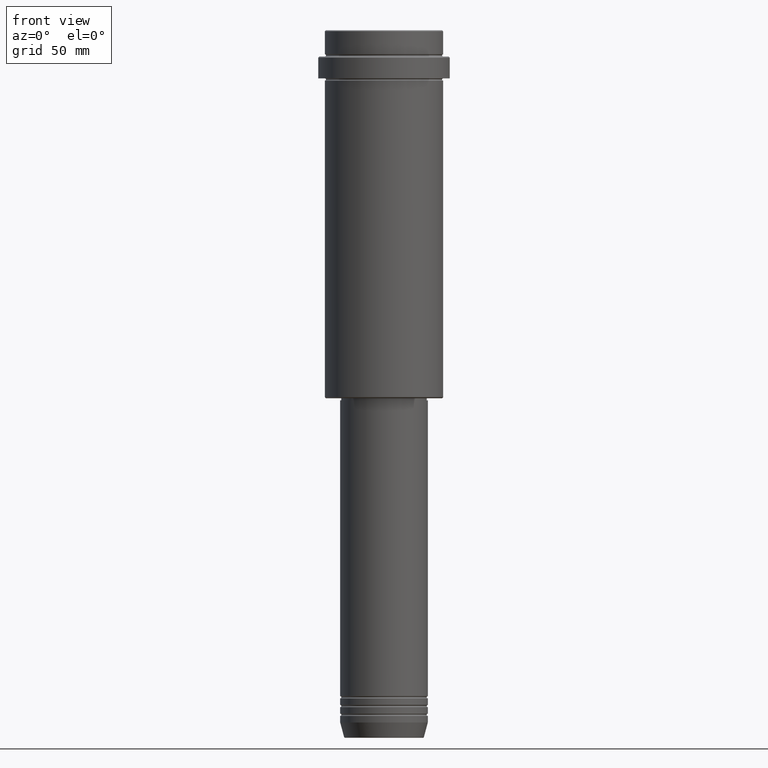
[diagram: clean part render]
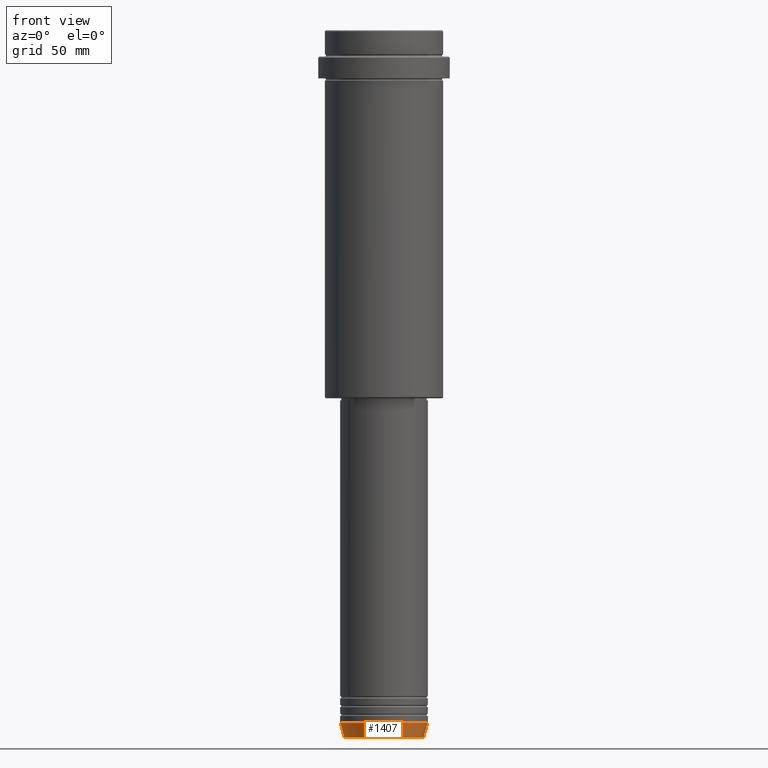
[diagram: same view with one face highlighted and labeled with its STEP entity id]
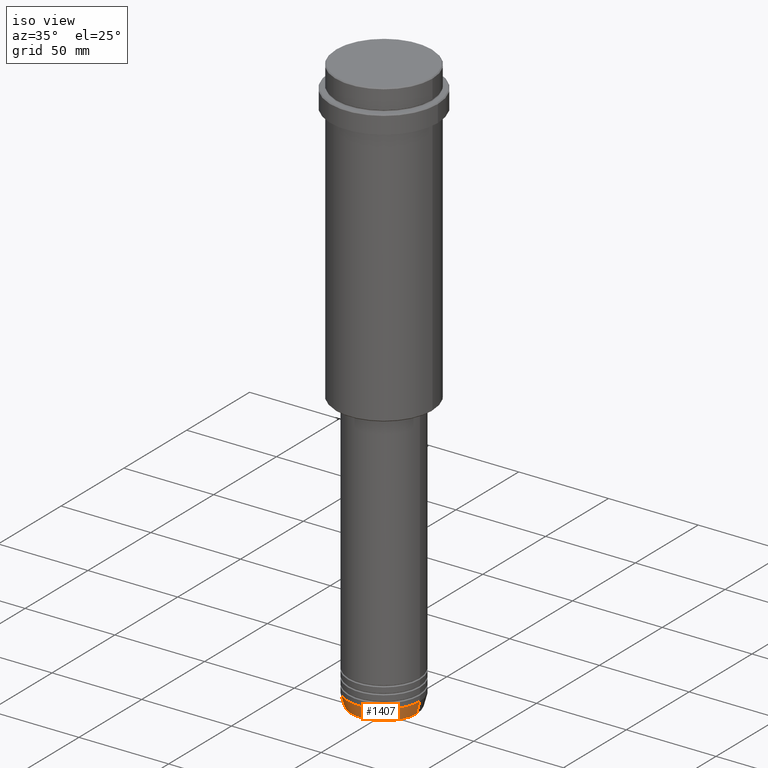
[diagram: same view with one face highlighted and labeled with its STEP entity id]
A machine part, front view. The second image highlights one B-rep face of the part: STEP entity #1407.
A second angle (iso view) of the same face is appended — the face is thin or edge-on in the first view.
In plain terms, the highlighted conical surface has half-angle 15 deg.
Its self-contained STEP definition (entity closure, byte-faithful):
#23 = VECTOR ( 'NONE', #809, 1000.000000000000000 ) ;
#115 = EDGE_CURVE ( 'NONE', #794, #1153, #374, .T. ) ;
#260 = LINE ( 'NONE', #276, #23 ) ;
#263 = EDGE_CURVE ( 'NONE', #1125, #794, #845, .T. ) ;
#276 = CARTESIAN_POINT ( 'NONE',  ( -20.00000000000000000, 2.449293598294706513E-15, -316.0000000000000000 ) ) ;
#296 = CARTESIAN_POINT ( 'NONE',  ( 0.000000000000000000, 0.000000000000000000, -322.6294095225512706 ) ) ;
#346 = CARTESIAN_POINT ( 'NONE',  ( 0.000000000000000000, 0.000000000000000000, -316.0000000000000000 ) ) ;
#370 = ORIENTED_EDGE ( 'NONE', *, *, #263, .T. ) ;
#374 = LINE ( 'NONE', #786, #1140 ) ;
#377 = AXIS2_PLACEMENT_3D ( 'NONE', #1256, #496, #909 ) ;
#433 = ORIENTED_EDGE ( 'NONE', *, *, #1369, .F. ) ;
#488 = CIRCLE ( 'NONE', #637, 20.00000000000000000 ) ;
#496 = DIRECTION ( 'NONE',  ( -0.000000000000000000, -0.000000000000000000, 1.000000000000000000 ) ) ;
#501 = DIRECTION ( 'NONE',  ( -0.000000000000000000, -0.000000000000000000, 1.000000000000000000 ) ) ;
#549 = DIRECTION ( 'NONE',  ( -0.000000000000000000, -0.000000000000000000, 1.000000000000000000 ) ) ;
#629 = EDGE_CURVE ( 'NONE', #700, #1153, #488, .T. ) ;
#637 = AXIS2_PLACEMENT_3D ( 'NONE', #346, #549, #667 ) ;
#667 = DIRECTION ( 'NONE',  ( 1.000000000000000000, 0.000000000000000000, 0.000000000000000000 ) ) ;
#700 = VERTEX_POINT ( 'NONE', #1310 ) ;
#704 = FACE_OUTER_BOUND ( 'NONE', #744, .T. ) ;
#744 = EDGE_LOOP ( 'NONE', ( #433, #370, #937, #1166 ) ) ;
#786 = CARTESIAN_POINT ( 'NONE',  ( 20.00000000000000000, 0.000000000000000000, -316.0000000000000000 ) ) ;
#794 = VERTEX_POINT ( 'NONE', #1301 ) ;
#809 = DIRECTION ( 'NONE',  ( -0.2588190451025213501, 3.169619151431772337E-17, 0.9659258262890680902 ) ) ;
#845 = CIRCLE ( 'NONE', #1299, 18.22365507213718772 ) ;
#909 = DIRECTION ( 'NONE',  ( 1.000000000000000000, 0.000000000000000000, 0.000000000000000000 ) ) ;
#937 = ORIENTED_EDGE ( 'NONE', *, *, #115, .T. ) ;
#954 = CARTESIAN_POINT ( 'NONE',  ( 20.00000000000000000, 0.000000000000000000, -316.0000000000000000 ) ) ;
#1000 = DIRECTION ( 'NONE',  ( 0.2588190451025213501, 0.000000000000000000, 0.9659258262890680902 ) ) ;
#1038 = DIRECTION ( 'NONE',  ( 1.000000000000000000, 0.000000000000000000, 0.000000000000000000 ) ) ;
#1125 = VERTEX_POINT ( 'NONE', #1152 ) ;
#1140 = VECTOR ( 'NONE', #1000, 1000.000000000000000 ) ;
#1152 = CARTESIAN_POINT ( 'NONE',  ( -18.22365507213718772, 2.340523841790264718E-15, -322.6294095225512706 ) ) ;
#1153 = VERTEX_POINT ( 'NONE', #954 ) ;
#1166 = ORIENTED_EDGE ( 'NONE', *, *, #629, .F. ) ;
#1238 = CONICAL_SURFACE ( 'NONE', #377, 20.00000000000000000, 0.2617993877991500740 ) ;
#1256 = CARTESIAN_POINT ( 'NONE',  ( 0.000000000000000000, 0.000000000000000000, -316.0000000000000000 ) ) ;
#1299 = AXIS2_PLACEMENT_3D ( 'NONE', #296, #501, #1038 ) ;
#1301 = CARTESIAN_POINT ( 'NONE',  ( 18.22365507213718772, 0.000000000000000000, -322.6294095225512706 ) ) ;
#1310 = CARTESIAN_POINT ( 'NONE',  ( -20.00000000000000000, 2.449293598294706513E-15, -316.0000000000000000 ) ) ;
#1369 = EDGE_CURVE ( 'NONE', #1125, #700, #260, .T. ) ;
#1407 = ADVANCED_FACE ( 'NONE', ( #704 ), #1238, .T. ) ;